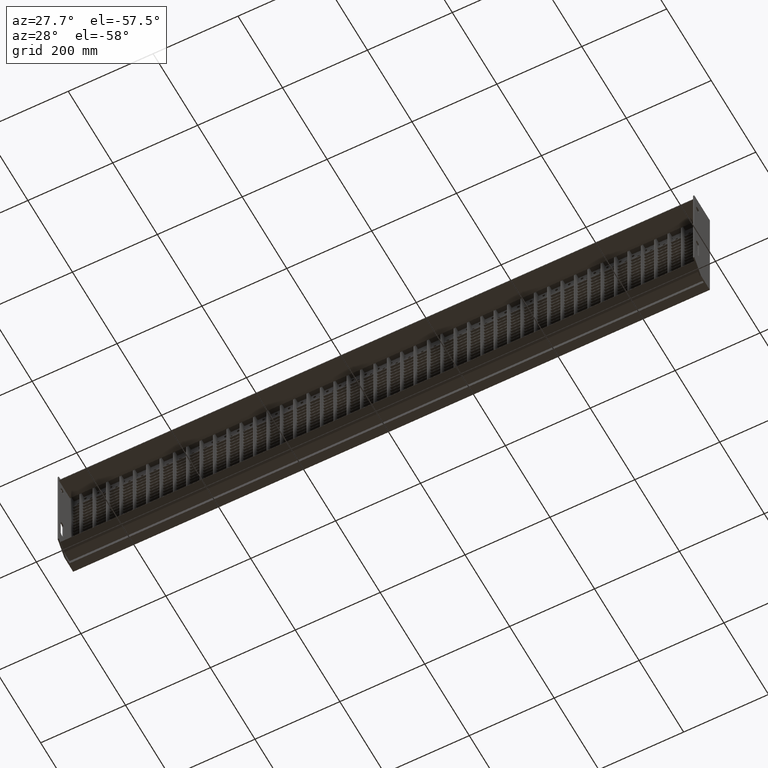
[diagram: clean part render]
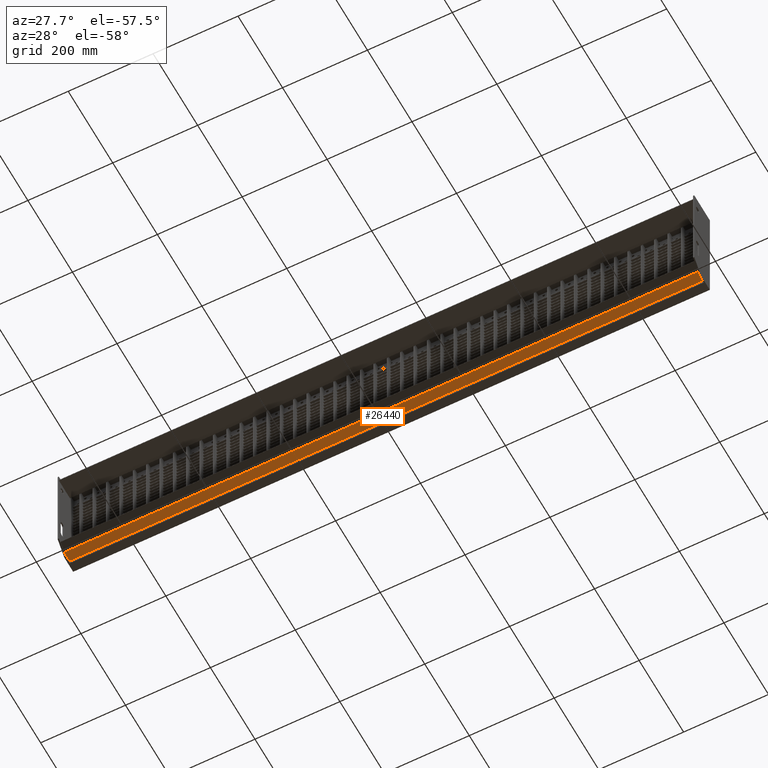
[diagram: same view with one face highlighted and labeled with its STEP entity id]
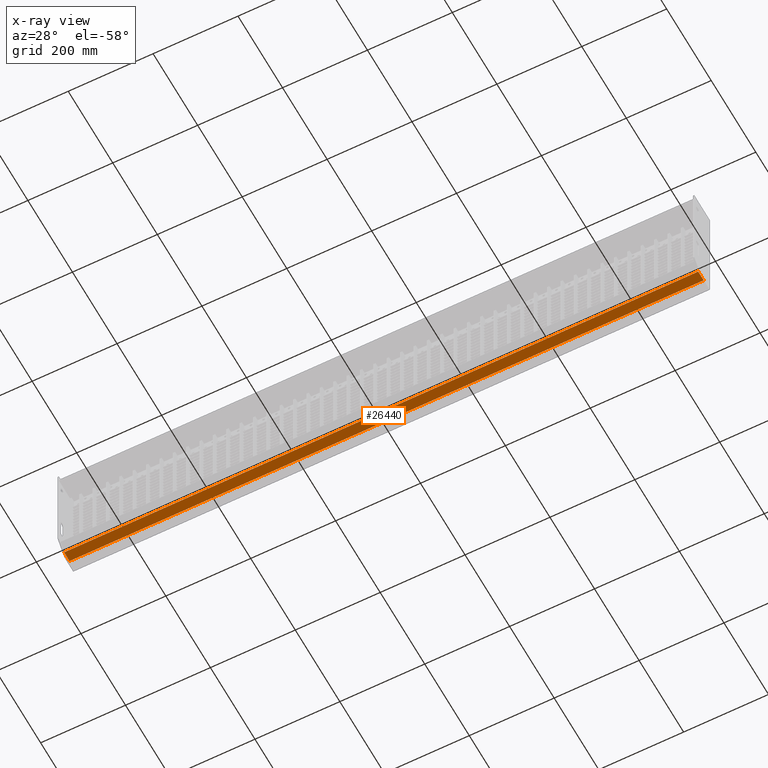
[diagram: x-ray of the same camera — body ghosted, the highlighted face saturated]
A machine part, auxiliary view. The second image highlights one B-rep face of the part: STEP entity #26440.
The next image is the same camera in x-ray: the body ghosted, the highlighted face saturated — about 0% of this face is hidden behind the body in this view.
In plain terms, the highlighted planar face has unit normal (0, 0, 1).
Its self-contained STEP definition (entity closure, byte-faithful):
#325 = VERTEX_POINT ( 'NONE', #32669 ) ;
#2627 = DIRECTION ( 'NONE',  ( 1.000000000000000000, -0.0000000000000000000, -0.0000000000000000000 ) ) ;
#3504 = AXIS2_PLACEMENT_3D ( 'NONE', #38995, #42222, #35268 ) ;
#3523 = EDGE_CURVE ( 'NONE', #41829, #17215, #17320, .T. ) ;
#4607 = ORIENTED_EDGE ( 'NONE', *, *, #27081, .T. ) ;
#5407 = VECTOR ( 'NONE', #33440, 1000.000000000000000 ) ;
#9237 = VERTEX_POINT ( 'NONE', #43144 ) ;
#9658 = CARTESIAN_POINT ( 'NONE',  ( -823.1577310586392300, 23.62132034355974100, -261.5000000000000000 ) ) ;
#13177 = CARTESIAN_POINT ( 'NONE',  ( -823.1577310586392300, 48.00000000000027700, -261.5000000000000000 ) ) ;
#16584 = CARTESIAN_POINT ( 'NONE',  ( -747.0000000000000000, 23.62132034355971300, -261.5000000000000000 ) ) ;
#17072 = LINE ( 'NONE', #9658, #5407 ) ;
#17215 = VERTEX_POINT ( 'NONE', #43852 ) ;
#17320 = LINE ( 'NONE', #27784, #39696 ) ;
#20208 = PLANE ( 'NONE',  #3504 ) ;
#22076 = CARTESIAN_POINT ( 'NONE',  ( 747.0000000000000000, 48.00000000000027700, -261.5000000000000000 ) ) ;
#22338 = EDGE_CURVE ( 'NONE', #17215, #9237, #37909, .T. ) ;
#22583 = VECTOR ( 'NONE', #28482, 1000.000000000000000 ) ;
#23459 = VECTOR ( 'NONE', #2627, 1000.000000000000000 ) ;
#23556 = EDGE_LOOP ( 'NONE', ( #42509, #26556, #33684, #4607 ) ) ;
#26440 = ADVANCED_FACE ( 'NONE', ( #34894 ), #20208, .F. ) ;
#26556 = ORIENTED_EDGE ( 'NONE', *, *, #3523, .T. ) ;
#27081 = EDGE_CURVE ( 'NONE', #9237, #325, #28465, .T. ) ;
#27784 = CARTESIAN_POINT ( 'NONE',  ( -747.0000000000000000, 48.00000000000027700, -261.5000000000000000 ) ) ;
#28465 = LINE ( 'NONE', #22076, #22583 ) ;
#28482 = DIRECTION ( 'NONE',  ( 0.0000000000000000000, -1.000000000000000000, 0.0000000000000000000 ) ) ;
#31195 = DIRECTION ( 'NONE',  ( 0.0000000000000000000, 1.000000000000000000, 0.0000000000000000000 ) ) ;
#32669 = CARTESIAN_POINT ( 'NONE',  ( 747.0000000000000000, 23.62132034355974100, -261.5000000000000000 ) ) ;
#33440 = DIRECTION ( 'NONE',  ( 1.000000000000000000, -0.0000000000000000000, -0.0000000000000000000 ) ) ;
#33684 = ORIENTED_EDGE ( 'NONE', *, *, #22338, .T. ) ;
#34625 = EDGE_CURVE ( 'NONE', #41829, #325, #17072, .T. ) ;
#34894 = FACE_OUTER_BOUND ( 'NONE', #23556, .T. ) ;
#35268 = DIRECTION ( 'NONE',  ( 1.000000000000000000, 0.0000000000000000000, -0.0000000000000000000 ) ) ;
#37909 = LINE ( 'NONE', #13177, #23459 ) ;
#38995 = CARTESIAN_POINT ( 'NONE',  ( -823.1577310586392300, 48.00000000000027700, -261.5000000000000000 ) ) ;
#39696 = VECTOR ( 'NONE', #31195, 1000.000000000000000 ) ;
#41829 = VERTEX_POINT ( 'NONE', #16584 ) ;
#42222 = DIRECTION ( 'NONE',  ( 0.0000000000000000000, 0.0000000000000000000, 1.000000000000000000 ) ) ;
#42509 = ORIENTED_EDGE ( 'NONE', *, *, #34625, .F. ) ;
#43144 = CARTESIAN_POINT ( 'NONE',  ( 747.0000000000000000, 48.00000000000027700, -261.5000000000000000 ) ) ;
#43852 = CARTESIAN_POINT ( 'NONE',  ( -747.0000000000000000, 48.00000000000027700, -261.5000000000000000 ) ) ;